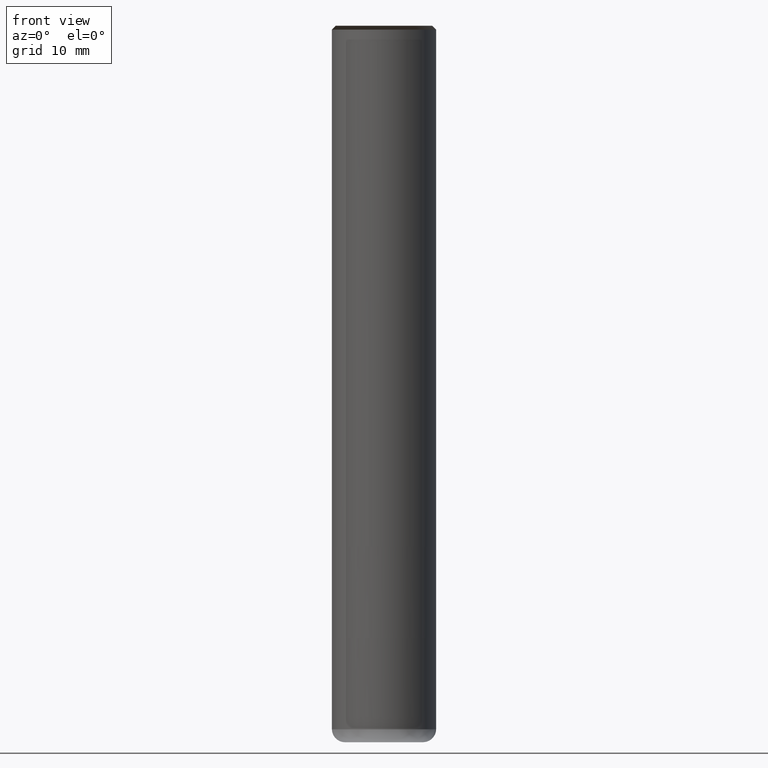
[diagram: clean part render]
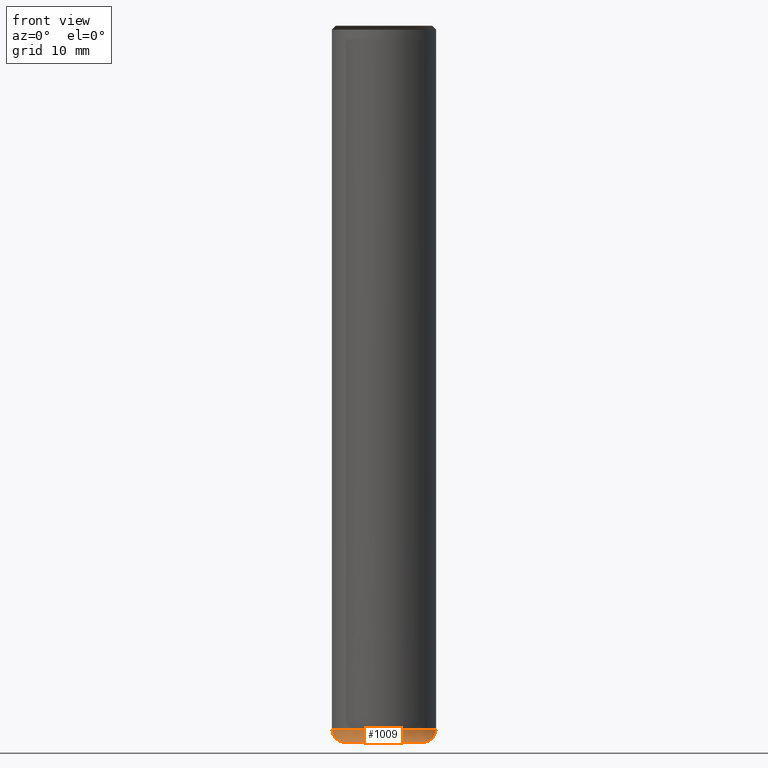
[diagram: same view with one face highlighted and labeled with its STEP entity id]
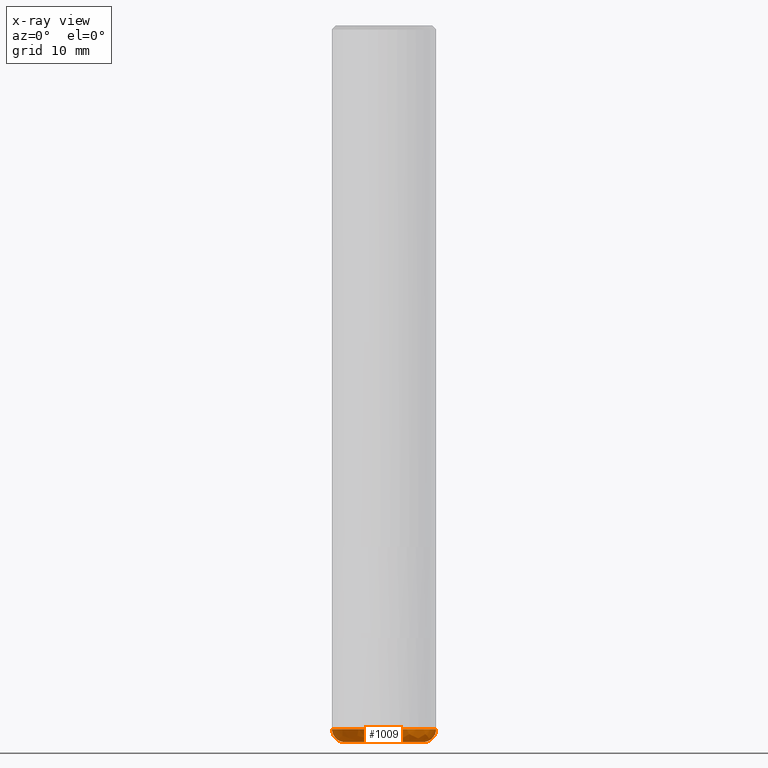
[diagram: x-ray of the same camera — body ghosted, the highlighted face saturated]
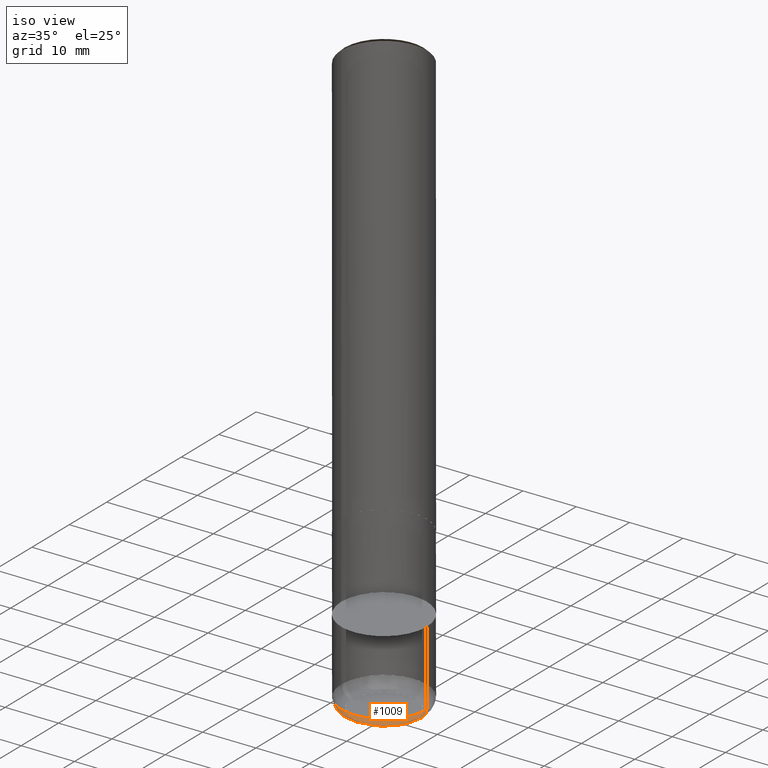
[diagram: same view with one face highlighted and labeled with its STEP entity id]
A machine part, front view. The second image highlights one B-rep face of the part: STEP entity #1009.
The next image is the same camera in x-ray: the body ghosted, the highlighted face saturated — about 0% of this face is hidden behind the body in this view.
A second angle (iso view) of the same face is appended — the face is thin or edge-on in the first view.
In plain terms, the highlighted face is a freeform B-spline surface patch.
Its self-contained STEP definition (entity closure, byte-faithful):
#821=CARTESIAN_POINT('',(6.0,0.0,-30.0));
#825=CARTESIAN_POINT('',(-6.0,0.0,-30.0));
#826=CARTESIAN_POINT('',(6.828427124746,0.0,-30.0));
#830=CARTESIAN_POINT('',(-6.828427124746,0.0,-30.0));
#831=CARTESIAN_POINT('',(7.414213562373,0.0,-29.414213562373));
#835=CARTESIAN_POINT('',(-7.414213562373,0.0,-29.414213562373));
#836=CARTESIAN_POINT('',(8.0,0.0,-28.828427124746));
#840=CARTESIAN_POINT('',(-8.0,0.0,-28.828427124746));
#841=CARTESIAN_POINT('',(8.0,0.0,-28.0));
#845=CARTESIAN_POINT('',(-8.0,0.0,-28.0));
#852=CARTESIAN_POINT('',(-6.0,-6.0,-30.0));
#853=CARTESIAN_POINT('',(0.0,-6.0,-30.0));
#854=CARTESIAN_POINT('',(6.0,-6.0,-30.0));
#855=CARTESIAN_POINT('',(-6.828427124746,-6.828427124746,-30.0));
#856=CARTESIAN_POINT('',(0.0,-6.828427124746,-30.0));
#857=CARTESIAN_POINT('',(6.828427124746,-6.828427124746,-30.0));
#858=CARTESIAN_POINT('',(-7.414213562373,-7.414213562373,-29.414213562373));
#859=CARTESIAN_POINT('',(0.0,-7.414213562373,-29.414213562373));
#860=CARTESIAN_POINT('',(7.414213562373,-7.414213562373,-29.414213562373));
#861=CARTESIAN_POINT('',(-8.0,-8.0,-28.828427124746));
#862=CARTESIAN_POINT('',(0.0,-8.0,-28.828427124746));
#863=CARTESIAN_POINT('',(8.0,-8.0,-28.828427124746));
#864=CARTESIAN_POINT('',(-8.0,-8.0,-28.0));
#865=CARTESIAN_POINT('',(0.0,-8.0,-28.0));
#866=CARTESIAN_POINT('',(8.0,-8.0,-28.0));
#990=(
BOUNDED_SURFACE()
B_SPLINE_SURFACE(2,2,(
(#825,#852,#853,#854,#821),
(#830,#855,#856,#857,#826),
(#835,#858,#859,#860,#831),
(#840,#861,#862,#863,#836),
(#845,#864,#865,#866,#841)
), .UNSPECIFIED.,.F.,.F.,.F.)
B_SPLINE_SURFACE_WITH_KNOTS((3,2,3),(3,2,3),(
0.0,0.5,1.0),(
0.0,0.5,1.0), .UNSPECIFIED.)
GEOMETRIC_REPRESENTATION_ITEM()
RATIONAL_B_SPLINE_SURFACE(((1.0,0.707106781187,1.0,0.707106781187,1.0),
(0.923879532511,0.653281482438,0.923879532511,0.653281482438,0.923879532511),
(1.0,0.707106781187,1.0,0.707106781187,1.0),
(0.923879532511,0.653281482438,0.923879532511,0.653281482438,0.923879532511),
(1.0,0.707106781187,1.0,0.707106781187,1.0)
))
REPRESENTATION_ITEM('')
SURFACE()
);
#991=(
BOUNDED_CURVE()
B_SPLINE_CURVE(2,(#845,#840,#835,#830,#825),.UNSPECIFIED.,.F.,.F.)
B_SPLINE_CURVE_WITH_KNOTS((3,2,3),
(0.0,0.5,1.0),.UNSPECIFIED.)
CURVE()
GEOMETRIC_REPRESENTATION_ITEM()
RATIONAL_B_SPLINE_CURVE((1.0,0.923879532511,1.0,0.923879532511,1.0))
REPRESENTATION_ITEM('')
);
#992=(
BOUNDED_CURVE()
B_SPLINE_CURVE(2,(#825,#852,#853,#854,#821),.UNSPECIFIED.,.F.,.F.)
B_SPLINE_CURVE_WITH_KNOTS((3,2,3),
(0.0,0.5,1.0),.UNSPECIFIED.)
CURVE()
GEOMETRIC_REPRESENTATION_ITEM()
RATIONAL_B_SPLINE_CURVE((1.0,0.707106781187,1.0,0.707106781187,1.0))
REPRESENTATION_ITEM('')
);
#993=(
BOUNDED_CURVE()
B_SPLINE_CURVE(2,(#821,#826,#831,#836,#841),.UNSPECIFIED.,.F.,.F.)
B_SPLINE_CURVE_WITH_KNOTS((3,2,3),
(0.0,0.5,1.0),.UNSPECIFIED.)
CURVE()
GEOMETRIC_REPRESENTATION_ITEM()
RATIONAL_B_SPLINE_CURVE((1.0,0.923879532511,1.0,0.923879532511,1.0))
REPRESENTATION_ITEM('')
);
#994=(
BOUNDED_CURVE()
B_SPLINE_CURVE(2,(#841,#866,#865,#864,#845),.UNSPECIFIED.,.F.,.F.)
B_SPLINE_CURVE_WITH_KNOTS((3,2,3),
(0.0,0.5,1.0),.UNSPECIFIED.)
CURVE()
GEOMETRIC_REPRESENTATION_ITEM()
RATIONAL_B_SPLINE_CURVE((1.0,0.707106781187,1.0,0.707106781187,1.0))
REPRESENTATION_ITEM('')
);
#995=VERTEX_POINT('',#821);
#996=VERTEX_POINT('',#825);
#997=VERTEX_POINT('',#841);
#998=VERTEX_POINT('',#845);
#999=EDGE_CURVE('',#998,#996,#991,.T.);
#1000=EDGE_CURVE('',#996,#995,#992,.T.);
#1001=EDGE_CURVE('',#995,#997,#993,.T.);
#1002=EDGE_CURVE('',#997,#998,#994,.T.);
#1003=ORIENTED_EDGE('',*,*,#999,.T.);
#1004=ORIENTED_EDGE('',*,*,#1000,.T.);
#1005=ORIENTED_EDGE('',*,*,#1001,.T.);
#1006=ORIENTED_EDGE('',*,*,#1002,.T.);
#1007=EDGE_LOOP('',(#1003,#1004,#1005,#1006));
#1008=FACE_OUTER_BOUND('',#1007,.T.);
#1009=ADVANCED_FACE('',(#1008),#990,.T.);